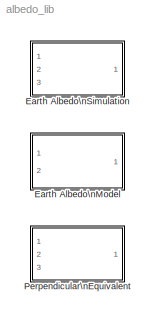
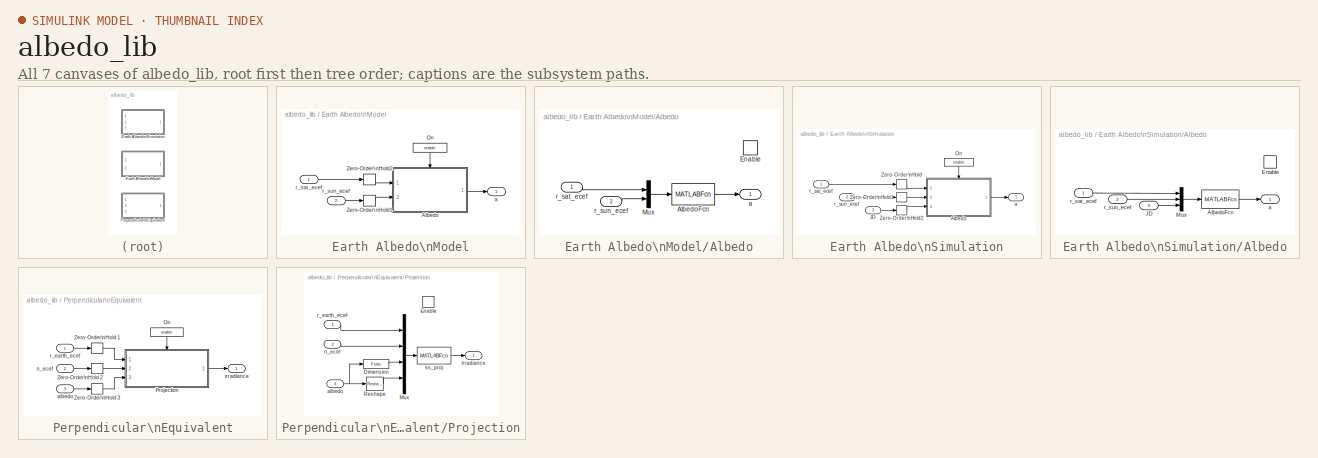
[diagram: thumbnail index - all 7 canvases of the model, root first then tree order]
MODEL albedo_lib
KIND library
BLOCK [SubSystem] Earth Albedo\nModel
  MaskCallbackString = |||enable = strcmp(get_param(gcb,'enable'),'on');
  MaskDescription = Calculcates the Earth albedo from satellite and Sun positions and static reflectivity data.
  MaskDisplay = image(imread('private/albedoicon.png'));\nport_label('output', 1, 'Albedo');\nport_label('input', 1, 'Sat');\nport_label('input', 2, 'Sun');
  MaskEnableString = on,on,on,on
  MaskHelp = <b>Input</b><br>\nSat: Vector to satellite in ECEF [m].<br>\nSun: Vector to the Sun in ECEF [m].<p>\n<b>Parameters</b><br>\nReflectivity Data (REFL Struct): TOMS Reflectivity data [E.U].<br>\nReduction factor: Reduce data resolution by this factor.<br>\nSample Time (-1 for inherited): Sample Time [s]. The block cannot inherit continuous sample time.<br>\nEnable: Enable or disable albedo calculatio...<+141ch>
  MaskHideContents = off
  MaskIconFrame = on
  MaskIconOpaque = on
  MaskIconRotate = none
  MaskIconUnits = autoscale
  MaskInitialization = global sy;\nglobal sx;\nsy = floor(180/redfac);\nsx = floor(288/redfac);\n
  MaskPromptString = Reflectivity Data (REFL Struct):|Reduction factor:|Sample Time (-1 for inherited):|Enable:
  MaskStyleString = edit,edit,edit,checkbox
  MaskTabNameString = ,,,
  MaskToolTipString = on,on,on,on
  MaskTunableValueString = on,on,off,on
  MaskType = Earth Albedo Model
  MaskValueString = mean_refl|4|-1|on
  MaskVarAliasString = ,,,
  MaskVariables = refldata=@1;redfac=@2;Ts=@3;enable=@4;
  MaskVisibilityString = on,on,on,on
  MinAlgLoopOccurrences = off
  Ports = [2, 1]
  RTWSystemCode = Auto
  TreatAsAtomicUnit = on
BLOCK [SubSystem] Earth Albedo\nModel/Albedo
  MaskHideContents = off
  MinAlgLoopOccurrences = off
  Ports = [2, 1, 1]
  RTWSystemCode = Auto
  TreatAsAtomicUnit = off
BLOCK [MATLABFcn] Earth Albedo\nModel/Albedo/AlbedoFcn
  MATLABFcn = albedo_wrapper(u(1:3),u(4:6),refldata,redfac)
  Output1D = off
  OutputDimensions = [sy sx]
  OutputSignalType = real
BLOCK [EnablePort] Earth Albedo\nModel/Albedo/Enable
  Ports = []
  StatesWhenEnabling = reset
BLOCK [Mux] Earth Albedo\nModel/Albedo/Mux
  DisplayOption = bar
  Inputs = 2
  Ports = [2, 1]
BLOCK [Outport] Earth Albedo\nModel/Albedo/a
  BusOutputAsStruct = off
  IconDisplay = Port number
  InitialOutput = 0
  OutputWhenDisabled = reset
BLOCK [Inport] Earth Albedo\nModel/Albedo/r_sat_ecef
  IconDisplay = Port number
  PortDimensions = 3
BLOCK [Inport] Earth Albedo\nModel/Albedo/r_sun_ecef
  IconDisplay = Port number
  Port = 2
  PortDimensions = 3
BLOCK [Constant] Earth Albedo\nModel/On
  Value = enable
BLOCK [ZeroOrderHold] Earth Albedo\nModel/Zero-Order\nHold1
  SampleTime = Ts
BLOCK [ZeroOrderHold] Earth Albedo\nModel/Zero-Order\nHold2
  SampleTime = Ts
BLOCK [Outport] Earth Albedo\nModel/a
  BusOutputAsStruct = off
  IconDisplay = Port number
BLOCK [Inport] Earth Albedo\nModel/r_sat_ecef
  IconDisplay = Port number
  SampleTime = Ts
BLOCK [Inport] Earth Albedo\nModel/r_sun_ecef
  IconDisplay = Port number
  Port = 2
  SampleTime = Ts
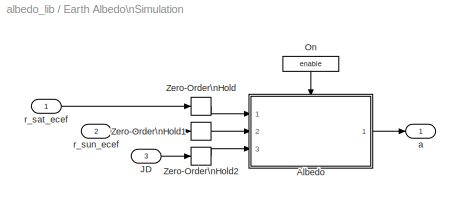
BLOCK [SubSystem] Earth Albedo\nSimulation
  MaskCallbackString = |||enable = strcmp(get_param(gcb,'enable'),'on');
  MaskDescription = Calculcates the Earth albedo from satellite and Sun positions and time. The time input is used to search the reflecitivity library for daile reflectivity data.
  MaskDisplay = image(imread('private/albedoicon.png'));\nport_label('output', 1, 'Albedo');\nport_label('input', 1, 'Sat');\nport_label('input', 2, 'Sun');\nport_label('input', 3, 'Time');
  MaskEnableString = on,on,on,on
  MaskHelp = <b>Input</b><br>\nSat: Vector to satellite in ECEF [m].<br>\nSun: Vector to the Sun in ECEF [m].<br>\nTime: Time in Julian Date [days].<p>\n<b>Parameters</b><br>\nPath to reflectivity data directories: System path to TOMS Earth Reflectivity Data. The data must be structured in i directiry for each year. The path is searched for the newest data, determined from the Time input.<br>\nReduction factor...<+333ch>
  MaskHideContents = off
  MaskIconFrame = on
  MaskIconOpaque = on
  MaskIconRotate = none
  MaskIconUnits = autoscale
  MaskInitialization = global sy;\nglobal sx;\nsy = floor(180/redfac);\nsx = floor(288/redfac);\n
  MaskPromptString = Path to reflectivity data directories:|Reduction factor:|Sample Time (-1 for inherited):|Enable:
  MaskStyleString = edit,edit,edit,checkbox
  MaskTabNameString = ,,,
  MaskToolTipString = on,on,on,on
  MaskTunableValueString = on,on,off,on
  MaskType = Earth Albedo Simuation
  MaskValueString = [albedo_path filesep 'refl_data']|4|-1|on
  MaskVarAliasString = ,,,
  MaskVariables = pathstr=@1;redfac=@2;Ts=@3;enable=@4;
  MaskVisibilityString = on,on,on,on
  MinAlgLoopOccurrences = off
  Ports = [3, 1]
  RTWSystemCode = Auto
  TreatAsAtomicUnit = on
BLOCK [SubSystem] Earth Albedo\nSimulation/Albedo
  MaskHideContents = off
  MinAlgLoopOccurrences = off
  Ports = [3, 1, 1]
  RTWSystemCode = Auto
  TreatAsAtomicUnit = off
BLOCK [MATLABFcn] Earth Albedo\nSimulation/Albedo/AlbedoFcn
  MATLABFcn = albedo_wrapper(u(1:3),u(4:6),u(7),redfac,pathstr)
  Output1D = off
  OutputDimensions = [sy sx]
  OutputSignalType = real
BLOCK [EnablePort] Earth Albedo\nSimulation/Albedo/Enable
  Ports = []
  StatesWhenEnabling = reset
BLOCK [Inport] Earth Albedo\nSimulation/Albedo/JD
  IconDisplay = Port number
  Port = 3
  PortDimensions = 1
BLOCK [Mux] Earth Albedo\nSimulation/Albedo/Mux
  DisplayOption = bar
  Inputs = 3
  Ports = [3, 1]
BLOCK [Outport] Earth Albedo\nSimulation/Albedo/a
  BusOutputAsStruct = off
  IconDisplay = Port number
  InitialOutput = 0
  OutputWhenDisabled = reset
BLOCK [Inport] Earth Albedo\nSimulation/Albedo/r_sat_ecef
  IconDisplay = Port number
  PortDimensions = 3
BLOCK [Inport] Earth Albedo\nSimulation/Albedo/r_sun_ecef
  IconDisplay = Port number
  Port = 2
  PortDimensions = 3
BLOCK [Inport] Earth Albedo\nSimulation/JD
  IconDisplay = Port number
  Port = 3
  PortDimensions = 1
  SampleTime = Ts
  SignalType = real
BLOCK [Constant] Earth Albedo\nSimulation/On
  Value = enable
BLOCK [ZeroOrderHold] Earth Albedo\nSimulation/Zero-Order\nHold
  SampleTime = Ts
BLOCK [ZeroOrderHold] Earth Albedo\nSimulation/Zero-Order\nHold1
  SampleTime = Ts
BLOCK [ZeroOrderHold] Earth Albedo\nSimulation/Zero-Order\nHold2
  SampleTime = Ts
BLOCK [Outport] Earth Albedo\nSimulation/a
  BusOutputAsStruct = off
  IconDisplay = Port number
BLOCK [Inport] Earth Albedo\nSimulation/r_sat_ecef
  IconDisplay = Port number
  PortDimensions = 3
  SampleTime = Ts
  SignalType = real
BLOCK [Inport] Earth Albedo\nSimulation/r_sun_ecef
  IconDisplay = Port number
  Port = 2
  PortDimensions = 3
  SampleTime = Ts
  SignalType = real
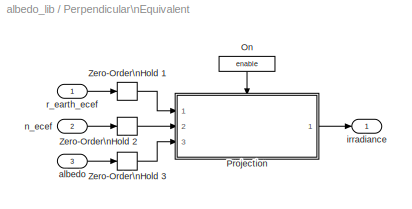
BLOCK [SubSystem] Perpendicular\nEquivalent
  MaskCallbackString = |
  MaskDescription = Projects all incoming Earth albedo irradiances onto a normal to the exposed surface. The scalar result is the norm of an equivalent perpendicular incident irradiance.
  MaskDisplay = image(imread('private/projectionicon.png'));\nport_label('output', 1, 'IRad');\nport_label('input', 1, 'Nadir');\nport_label('input', 2, 'Nss');\nport_label('input', 3, 'Albedo');
  MaskEnableString = on,on
  MaskHelp = <b>Input</b><br>\nNadir: Vector from satellite position to Earth center in ECEF [m].<br>\nNss:: Normal vector of exposed surface in ECEF.<br>\nAlbedo: Earth albedo matrix.<p>\n<b>Parameters</b><br>\nSample Time (-1 for inherited): Sample Time [s]. The block cannot inherit continuous sample time.<br>\nEnable: Enable or disable albedo calculation<p>\n<b>Output</b><br>\nIRad: Norm of equivalent incid...<+35ch>
  MaskHideContents = off
  MaskIconFrame = on
  MaskIconOpaque = on
  MaskIconRotate = none
  MaskIconUnits = autoscale
  MaskPromptString = Sample Time (-1 for inherited)|Enable:
  MaskStyleString = edit,checkbox
  MaskTabNameString = ,
  MaskToolTipString = on,on
  MaskTunableValueString = off,on
  MaskType = Perpendicular Equivalent
  MaskValueString = -1|on
  MaskVarAliasString = ,
  MaskVariables = Ts=@1;enable=@2;
  MaskVisibilityString = on,on
  MinAlgLoopOccurrences = off
  Ports = [3, 1]
  RTWSystemCode = Auto
  TreatAsAtomicUnit = off
BLOCK [Constant] Perpendicular\nEquivalent/On
  Value = enable
BLOCK [SubSystem] Perpendicular\nEquivalent/Projection
  MaskHideContents = off
  MinAlgLoopOccurrences = off
  Ports = [3, 1, 1]
  RTWSystemCode = Auto
  TreatAsAtomicUnit = on
BLOCK [Probe] Perpendicular\nEquivalent/Projection/Dimension
  Ports = [1, 1]
  ProbeComplexSignal = off
  ProbeSampleTime = off
  ProbeSignalDimensions = on
  ProbeWidth = off
BLOCK [EnablePort] Perpendicular\nEquivalent/Projection/Enable
  Ports = []
BLOCK [Mux] Perpendicular\nEquivalent/Projection/Mux
  DisplayOption = bar
  Ports = [4, 1]
BLOCK [Reference] Perpendicular\nEquivalent/Projection/Reshape  REF=simulink/Math\nOperations/Reshape
  OutputDimensionality = 1-D array
  OutputDimensions = [1,1]
  Ports = [1, 1]
  SourceBlock = simulink/Math\nOperations/Reshape
  SourceType = Reshape
BLOCK [Inport] Perpendicular\nEquivalent/Projection/albedo
  IconDisplay = Port number
  Port = 3
BLOCK [Outport] Perpendicular\nEquivalent/Projection/irradiance
  BusOutputAsStruct = off
  IconDisplay = Port number
BLOCK [Inport] Perpendicular\nEquivalent/Projection/n_ecef
  IconDisplay = Port number
  Port = 2
BLOCK [Inport] Perpendicular\nEquivalent/Projection/r_earth_ecef
  IconDisplay = Port number
BLOCK [MATLABFcn] Perpendicular\nEquivalent/Projection/ss_proj
  MATLABFcn = ss_proj(u(1:3),u(4:6),reshape(u(9:u(7)*u(8)+8),u(7),u(8)) );
  OutputDimensions = 1
BLOCK [ZeroOrderHold] Perpendicular\nEquivalent/Zero-Order\nHold 1
  SampleTime = Ts
BLOCK [ZeroOrderHold] Perpendicular\nEquivalent/Zero-Order\nHold 2
  SampleTime = Ts
BLOCK [ZeroOrderHold] Perpendicular\nEquivalent/Zero-Order\nHold 3
  SampleTime = Ts
BLOCK [Inport] Perpendicular\nEquivalent/albedo
  IconDisplay = Port number
  Port = 3
  SampleTime = Ts
  SignalType = real
BLOCK [Outport] Perpendicular\nEquivalent/irradiance
  BusOutputAsStruct = off
  IconDisplay = Port number
  PortDimensions = 1
  SampleTime = Ts
  SignalType = real
BLOCK [Inport] Perpendicular\nEquivalent/n_ecef
  IconDisplay = Port number
  Port = 2
  PortDimensions = 3
  SampleTime = Ts
  SignalType = real
BLOCK [Inport] Perpendicular\nEquivalent/r_earth_ecef
  IconDisplay = Port number
  PortDimensions = 3
  SampleTime = Ts
  SignalType = real
LINE Earth Albedo\nModel/Albedo/AlbedoFcn:1 -> Earth Albedo\nModel/Albedo/a:1
LINE Earth Albedo\nModel/Albedo/Mux:1 -> Earth Albedo\nModel/Albedo/AlbedoFcn:1
LINE Earth Albedo\nModel/Albedo/r_sat_ecef:1 -> Earth Albedo\nModel/Albedo/Mux:1
LINE Earth Albedo\nModel/Albedo/r_sun_ecef:1 -> Earth Albedo\nModel/Albedo/Mux:2
LINE Earth Albedo\nModel/Albedo:1 -> Earth Albedo\nModel/a:1
LINE Earth Albedo\nModel/On:1 -> Earth Albedo\nModel/Albedo:enable
LINE Earth Albedo\nModel/Zero-Order\nHold1:1 -> Earth Albedo\nModel/Albedo:2
LINE Earth Albedo\nModel/Zero-Order\nHold2:1 -> Earth Albedo\nModel/Albedo:1
LINE Earth Albedo\nModel/r_sat_ecef:1 -> Earth Albedo\nModel/Zero-Order\nHold2:1
LINE Earth Albedo\nModel/r_sun_ecef:1 -> Earth Albedo\nModel/Zero-Order\nHold1:1
LINE Earth Albedo\nSimulation/Albedo/AlbedoFcn:1 -> Earth Albedo\nSimulation/Albedo/a:1
LINE Earth Albedo\nSimulation/Albedo/JD:1 -> Earth Albedo\nSimulation/Albedo/Mux:3
LINE Earth Albedo\nSimulation/Albedo/Mux:1 -> Earth Albedo\nSimulation/Albedo/AlbedoFcn:1
LINE Earth Albedo\nSimulation/Albedo/r_sat_ecef:1 -> Earth Albedo\nSimulation/Albedo/Mux:1
LINE Earth Albedo\nSimulation/Albedo/r_sun_ecef:1 -> Earth Albedo\nSimulation/Albedo/Mux:2
LINE Earth Albedo\nSimulation/Albedo:1 -> Earth Albedo\nSimulation/a:1
LINE Earth Albedo\nSimulation/JD:1 -> Earth Albedo\nSimulation/Zero-Order\nHold2:1
LINE Earth Albedo\nSimulation/On:1 -> Earth Albedo\nSimulation/Albedo:enable
LINE Earth Albedo\nSimulation/Zero-Order\nHold1:1 -> Earth Albedo\nSimulation/Albedo:2
LINE Earth Albedo\nSimulation/Zero-Order\nHold2:1 -> Earth Albedo\nSimulation/Albedo:3
LINE Earth Albedo\nSimulation/Zero-Order\nHold:1 -> Earth Albedo\nSimulation/Albedo:1
LINE Earth Albedo\nSimulation/r_sat_ecef:1 -> Earth Albedo\nSimulation/Zero-Order\nHold:1
LINE Earth Albedo\nSimulation/r_sun_ecef:1 -> Earth Albedo\nSimulation/Zero-Order\nHold1:1
LINE Perpendicular\nEquivalent/On:1 -> Perpendicular\nEquivalent/Projection:enable
LINE Perpendicular\nEquivalent/Projection/Dimension:1 -> Perpendicular\nEquivalent/Projection/Mux:3
LINE Perpendicular\nEquivalent/Projection/Mux:1 -> Perpendicular\nEquivalent/Projection/ss_proj:1
LINE Perpendicular\nEquivalent/Projection/Reshape:1 -> Perpendicular\nEquivalent/Projection/Mux:4
NET Perpendicular\nEquivalent/Projection/albedo:1 -> Perpendicular\nEquivalent/Projection/Dimension:1, Perpendicular\nEquivalent/Projection/Reshape:1
LINE Perpendicular\nEquivalent/Projection/n_ecef:1 -> Perpendicular\nEquivalent/Projection/Mux:2
LINE Perpendicular\nEquivalent/Projection/r_earth_ecef:1 -> Perpendicular\nEquivalent/Projection/Mux:1
LINE Perpendicular\nEquivalent/Projection/ss_proj:1 -> Perpendicular\nEquivalent/Projection/irradiance:1
LINE Perpendicular\nEquivalent/Projection:1 -> Perpendicular\nEquivalent/irradiance:1
LINE Perpendicular\nEquivalent/Zero-Order\nHold 1:1 -> Perpendicular\nEquivalent/Projection:1
LINE Perpendicular\nEquivalent/Zero-Order\nHold 2:1 -> Perpendicular\nEquivalent/Projection:2
LINE Perpendicular\nEquivalent/Zero-Order\nHold 3:1 -> Perpendicular\nEquivalent/Projection:3
LINE Perpendicular\nEquivalent/albedo:1 -> Perpendicular\nEquivalent/Zero-Order\nHold 3:1
LINE Perpendicular\nEquivalent/n_ecef:1 -> Perpendicular\nEquivalent/Zero-Order\nHold 2:1
LINE Perpendicular\nEquivalent/r_earth_ecef:1 -> Perpendicular\nEquivalent/Zero-Order\nHold 1:1
note: NET lines group one-source signal fan-out (src -> all destinations, sorted); 1:1 wires keep LINE
